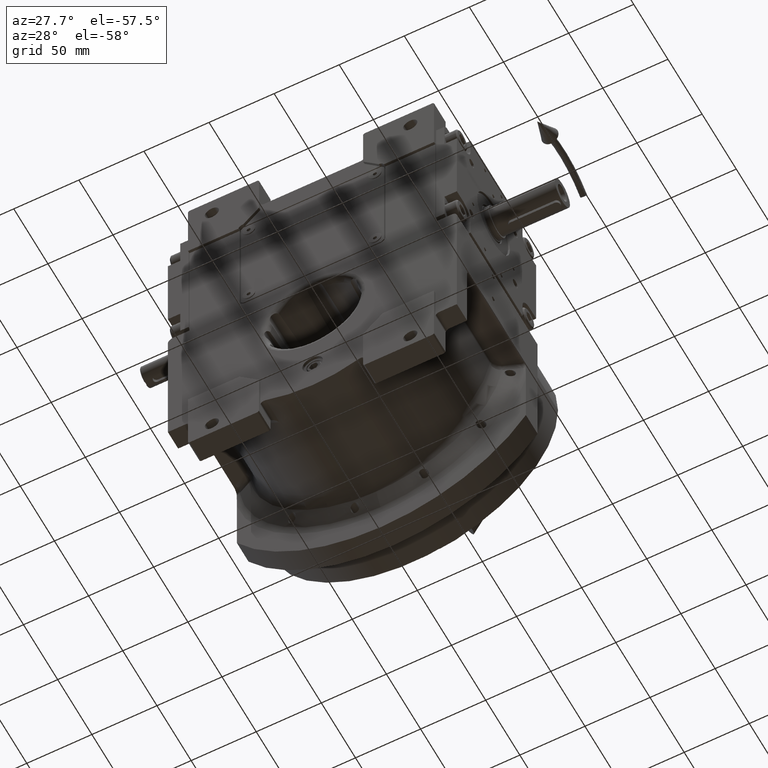
[diagram: clean part render]
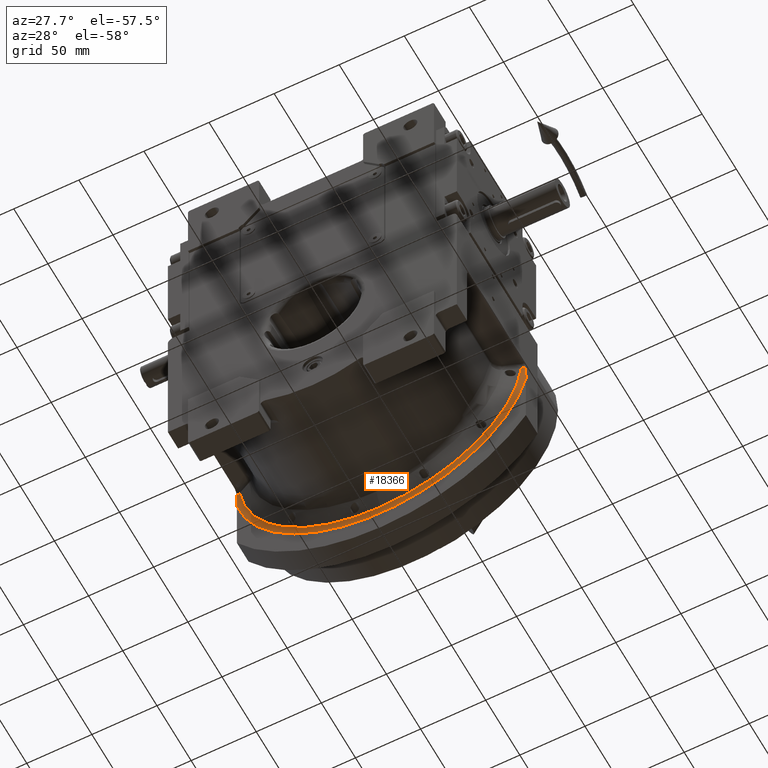
[diagram: same view with one face highlighted and labeled with its STEP entity id]
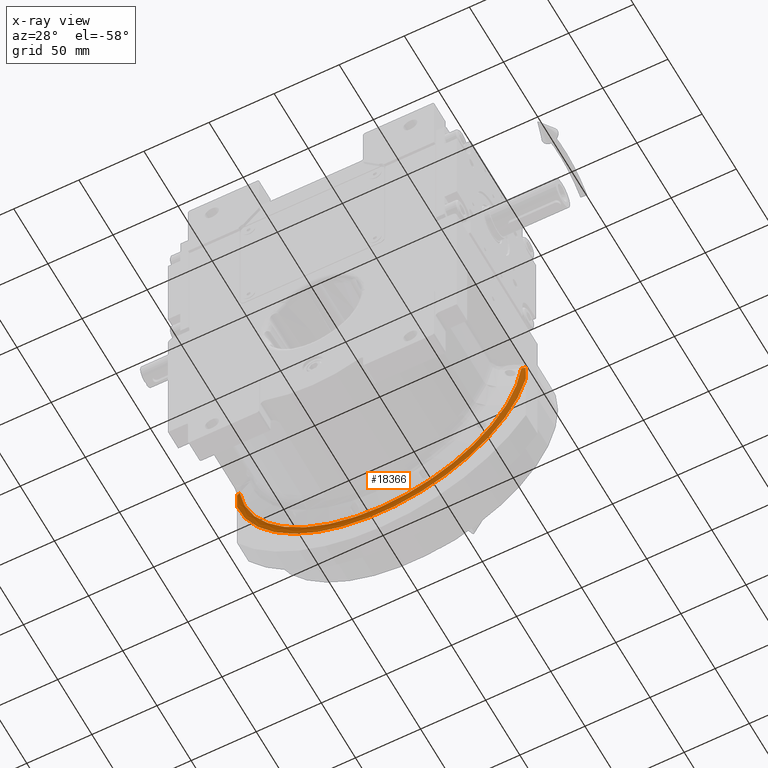
[diagram: x-ray of the same camera — body ghosted, the highlighted face saturated]
A machine part, auxiliary view. The second image highlights one B-rep face of the part: STEP entity #18366.
The next image is the same camera in x-ray: the body ghosted, the highlighted face saturated — about 0% of this face is hidden behind the body in this view.
In plain terms, the highlighted toroidal blend (fillet) surface has major radius 113.879 mm and minor (blend) radius 10 mm.
Its self-contained STEP definition (entity closure, byte-faithful):
#482 = ORIENTED_EDGE ( 'NONE', *, *, #14515, .F. ) ;
#736 = CARTESIAN_POINT ( 'NONE',  ( -108.2181486248951927, 46.16020982646139714, -11.98056577044130044 ) ) ;
#1132 = CARTESIAN_POINT ( 'NONE',  ( 109.9039732449431170, 46.93902478097685815, -11.84631214861205706 ) ) ;
#2219 = CARTESIAN_POINT ( 'NONE',  ( 110.9999999999999574, 47.37721023959501565, -17.15660303781627150 ) ) ;
#2521 = B_SPLINE_CURVE_WITH_KNOTS ( 'NONE', 3,
 ( #24595, #67567, #51083, #45922, #55563, #35895, #40416, #60718, #61737, #25622, #13607, #35223, #46600 ),
 .UNSPECIFIED., .F., .F.,
 ( 4, 1, 1, 2, 2, 1, 1, 1, 4 ),
 ( 0.000000000000000000, 0.4999999999999906741, 0.5624999999999891198, 0.5703124999999893419, 0.5781249999999896749, 0.5937499999999901190, 0.6249999999999905631, 0.7499999999999935607, 1.000000000000000000 ),
 .UNSPECIFIED. ) ;
#2628 = CARTESIAN_POINT ( 'NONE',  ( -110.9999998426041969, 47.24161804384319652, -11.75654023702319861 ) ) ;
#2826 = VERTEX_POINT ( 'NONE', #736 ) ;
#2895 = CARTESIAN_POINT ( 'NONE',  ( 111.0000000000000000, 47.50000000000000000, -25.44626115736659955 ) ) ;
#3238 = CARTESIAN_POINT ( 'NONE',  ( 110.9999998869266022, 47.24161831933449918, -11.75654022255562126 ) ) ;
#4793 = ORIENTED_EDGE ( 'NONE', *, *, #37462, .T. ) ;
#4863 = B_SPLINE_CURVE_WITH_KNOTS ( 'NONE', 3,
 ( #36558, #27280, #1132, #57571, #58261, #11126 ),
 .UNSPECIFIED., .F., .F.,
 ( 4, 2, 4 ),
 ( 0.000000000000000000, 0.5000000000000000000, 1.000000000000000000 ),
 .UNSPECIFIED. ) ;
#4967 = FACE_OUTER_BOUND ( 'NONE', #40000, .T. ) ;
#7204 =( BOUNDED_CURVE ( )  B_SPLINE_CURVE ( 3, ( #11959, #60440, #53923, #18809 ),
 .UNSPECIFIED., .F., .F. ) 
 B_SPLINE_CURVE_WITH_KNOTS ( ( 4, 4 ),
 ( 4.894359738531879778, 6.354897060524587360 ),
 .UNSPECIFIED. ) 
 CURVE ( )  GEOMETRIC_REPRESENTATION_ITEM ( )  RATIONAL_B_SPLINE_CURVE ( ( 1.000000000000000000, 0.8299968090623841555, 0.8299968090623841555, 1.000000000000000000 ) ) 
 REPRESENTATION_ITEM ( '' )  );
#7763 = CIRCLE ( 'NONE', #48369, 113.8793756871230158 ) ;
#8230 = VERTEX_POINT ( 'NONE', #67617 ) ;
#9006 =( BOUNDED_CURVE ( )  B_SPLINE_CURVE ( 3, ( #58162, #11704, #22360, #16190 ),
 .UNSPECIFIED., .F., .F. ) 
 B_SPLINE_CURVE_WITH_KNOTS ( ( 4, 4 ),
 ( 0.07171175334500150267, 1.532246419677093741 ),
 .UNSPECIFIED. ) 
 CURVE ( )  GEOMETRIC_REPRESENTATION_ITEM ( )  RATIONAL_B_SPLINE_CURVE ( ( 1.000000000000000000, 0.8299973995656204639, 0.8299973995656204639, 1.000000000000000000 ) ) 
 REPRESENTATION_ITEM ( '' )  );
#11126 = CARTESIAN_POINT ( 'NONE',  ( 108.2182055107325880, 46.16026080517839603, -11.98086067912928065 ) ) ;
#11704 = CARTESIAN_POINT ( 'NONE',  ( 58.33757220637139795, 46.16024934371661459, -108.8793713190323729 ) ) ;
#11959 = CARTESIAN_POINT ( 'NONE',  ( -108.2181486248951927, 46.16020982646139714, -11.98056577044130044 ) ) ;
#12516 = EDGE_CURVE ( 'NONE', #38783, #32000, #47442, .T. ) ;
#13458 = CARTESIAN_POINT ( 'NONE',  ( 111.0000000000000000, 47.50000000000000000, -25.44626115736659955 ) ) ;
#13607 = CARTESIAN_POINT ( 'NONE',  ( -111.0000000000000284, 47.30739276393136095, -14.28307552350015541 ) ) ;
#13645 = ORIENTED_EDGE ( 'NONE', *, *, #54221, .F. ) ;
#14238 = CARTESIAN_POINT ( 'NONE',  ( 111.0000000000000000, 47.38034144301978046, -17.28637658354777784 ) ) ;
#14515 = EDGE_CURVE ( 'NONE', #63971, #8230, #9006, .T. ) ;
#16190 = CARTESIAN_POINT ( 'NONE',  ( 108.2182055107325880, 46.16026080517839603, -11.98086067912928065 ) ) ;
#18366 = ADVANCED_FACE ( 'NONE', ( #4967 ), #23554, .F. ) ;
#18809 = CARTESIAN_POINT ( 'NONE',  ( -6.107335892911600708E-14, 46.16024936020976099, -108.8793717567185979 ) ) ;
#18924 = ORIENTED_EDGE ( 'NONE', *, *, #12516, .F. ) ;
#19105 = CARTESIAN_POINT ( 'NONE',  ( -108.9781506155099464, 46.56477920288156724, -11.92076974956339086 ) ) ;
#19383 = CARTESIAN_POINT ( 'NONE',  ( 110.9999999999999858, 47.37382107352491545, -17.01630155678829581 ) ) ;
#22360 = CARTESIAN_POINT ( 'NONE',  ( 101.7988371762501458, 46.16025378558333614, -69.96418493751507128 ) ) ;
#23528 = CARTESIAN_POINT ( 'NONE',  ( 110.9999999999999574, 47.38500262563848509, -17.48094355212767326 ) ) ;
#23554 = TOROIDAL_SURFACE ( 'NONE', #53227, 113.8793756871230016, 10.00000000000000000 ) ;
#24223 = CARTESIAN_POINT ( 'NONE',  ( 110.9999999999999716, 47.37947912676571605, -17.25058397870262894 ) ) ;
#24595 = CARTESIAN_POINT ( 'NONE',  ( -111.0000000000000000, 47.50000000000000000, -25.44626115736729588 ) ) ;
#25622 = CARTESIAN_POINT ( 'NONE',  ( -110.9999999999999716, 47.35640947859300098, -16.28572579493090444 ) ) ;
#27280 = CARTESIAN_POINT ( 'NONE',  ( 110.4235987460407671, 47.10989188117843440, -11.80426955000224964 ) ) ;
#29088 = CARTESIAN_POINT ( 'NONE',  ( -108.2181486248951927, 46.16020982646139714, -11.98056577044130044 ) ) ;
#32000 = VERTEX_POINT ( 'NONE', #13458 ) ;
#34180 = CARTESIAN_POINT ( 'NONE',  ( 110.9999999999999289, 47.46019542777067812, -20.85051949887152745 ) ) ;
#35223 = CARTESIAN_POINT ( 'NONE',  ( -111.0000000000000284, 47.26671036820440008, -12.69711666045169274 ) ) ;
#35895 = CARTESIAN_POINT ( 'NONE',  ( -111.0000000000000142, 47.38804427955523835, -17.60168279826294579 ) ) ;
#36506 = CARTESIAN_POINT ( 'NONE',  ( -6.107335892911600708E-14, 46.16024936020976099, -108.8793717567185979 ) ) ;
#36558 = CARTESIAN_POINT ( 'NONE',  ( 110.9999998869266022, 47.24161831933449918, -11.75654022255562126 ) ) ;
#37462 = EDGE_CURVE ( 'NONE', #51100, #32000, #7763, .T. ) ;
#38783 = VERTEX_POINT ( 'NONE', #65721 ) ;
#39147 = EDGE_CURVE ( 'NONE', #38783, #8230, #4863, .T. ) ;
#39354 = CARTESIAN_POINT ( 'NONE',  ( 110.9999999999999432, 47.30109702303251140, -14.03657177442504000 ) ) ;
#40000 = EDGE_LOOP ( 'NONE', ( #13645, #43476, #47714, #4793, #18924, #48646, #482 ) ) ;
#40371 = CARTESIAN_POINT ( 'NONE',  ( 110.9999999999999858, 47.35262548411426309, -16.14045418600772308 ) ) ;
#40416 = CARTESIAN_POINT ( 'NONE',  ( -111.0000000000000142, 47.38697793714037942, -17.55712914402924696 ) ) ;
#43476 = ORIENTED_EDGE ( 'NONE', *, *, #56133, .T. ) ;
#45346 = CARTESIAN_POINT ( 'NONE',  ( -111.0000000000000000, 47.50000000000000000, -25.44626115736729588 ) ) ;
#45528 = CARTESIAN_POINT ( 'NONE',  ( 110.9999999999999574, 47.26250817921272329, -12.53135113091263264 ) ) ;
#45922 = CARTESIAN_POINT ( 'NONE',  ( -111.0000000000000142, 47.39775283363938030, -18.01025571059393826 ) ) ;
#46158 = CARTESIAN_POINT ( 'NONE',  ( -9.947598300641398816E-14, 47.50000000000000000, -5.684341886080798963E-14 ) ) ;
#46600 = CARTESIAN_POINT ( 'NONE',  ( -110.9999998426041969, 47.24161804384319652, -11.75654023702319861 ) ) ;
#47362 = VERTEX_POINT ( 'NONE', #51501 ) ;
#47442 = B_SPLINE_CURVE_WITH_KNOTS ( 'NONE', 3,
 ( #3238, #45528, #39354, #40371, #19383, #2219, #24223, #14238, #23528, #50040, #34180, #60342, #2895 ),
 .UNSPECIFIED., .F., .F.,
 ( 4, 1, 1, 1, 2, 2, 1, 1, 4 ),
 ( 0.000000000000000000, 0.2499999999999993339, 0.3749999999999991673, 0.3906249999999991673, 0.3984374999999988898, 0.4062499999999986122, 0.4374999999999987788, 0.4999999999999991118, 1.000000000000000000 ),
 .UNSPECIFIED. ) ;
#47714 = ORIENTED_EDGE ( 'NONE', *, *, #49116, .F. ) ;
#48369 = AXIS2_PLACEMENT_3D ( 'NONE', #46158, #67137, #55790 ) ;
#48646 = ORIENTED_EDGE ( 'NONE', *, *, #39147, .T. ) ;
#49116 = EDGE_CURVE ( 'NONE', #51100, #47362, #2521, .T. ) ;
#49436 = CARTESIAN_POINT ( 'NONE',  ( -108.5720257659131534, 46.36153724422366906, -11.95314572303506395 ) ) ;
#49780 = CARTESIAN_POINT ( 'NONE',  ( -110.4234585868003222, 47.10985980794839634, -11.80427979343789069 ) ) ;
#50040 = CARTESIAN_POINT ( 'NONE',  ( 110.9999999999999147, 47.39592956473512686, -17.94582316151957713 ) ) ;
#51083 = CARTESIAN_POINT ( 'NONE',  ( -110.9999999999999858, 47.45869610671962846, -20.70783326501533494 ) ) ;
#51086 = DIRECTION ( 'NONE',  ( -0.9987228073795436645, 0.000000000000000000, -0.05052478619373559215 ) ) ;
#51100 = VERTEX_POINT ( 'NONE', #45346 ) ;
#51501 = CARTESIAN_POINT ( 'NONE',  ( -110.9999998426041969, 47.24161804384319652, -11.75654023702319861 ) ) ;
#52769 = B_SPLINE_CURVE_WITH_KNOTS ( 'NONE', 3,
 ( #29088, #49436, #19105, #65579, #49780, #2628 ),
 .UNSPECIFIED., .F., .F.,
 ( 4, 2, 4 ),
 ( 0.000000000000000000, 0.5000000000000000000, 1.000000000000000000 ),
 .UNSPECIFIED. ) ;
#53227 = AXIS2_PLACEMENT_3D ( 'NONE', #67916, #62761, #51086 ) ;
#53923 = CARTESIAN_POINT ( 'NONE',  ( -58.33770022237654018, 46.16024937670292871, -108.8793721944054340 ) ) ;
#54221 = EDGE_CURVE ( 'NONE', #2826, #63971, #7204, .T. ) ;
#55563 = CARTESIAN_POINT ( 'NONE',  ( -111.0000000000000284, 47.38981798226070907, -17.67600262140464196 ) ) ;
#55790 = DIRECTION ( 'NONE',  ( -0.9747155648707268583, 0.000000000000000000, -0.2234492506112734644 ) ) ;
#56133 = EDGE_CURVE ( 'NONE', #2826, #47362, #52769, .T. ) ;
#57571 = CARTESIAN_POINT ( 'NONE',  ( 108.9783490142804538, 46.56487083118202719, -11.92075401756932429 ) ) ;
#58162 = CARTESIAN_POINT ( 'NONE',  ( -6.107335892911600708E-14, 46.16024936020976099, -108.8793717567185979 ) ) ;
#58261 = CARTESIAN_POINT ( 'NONE',  ( 108.5721546957471020, 46.36161021549431638, -11.95313475060374131 ) ) ;
#60342 = CARTESIAN_POINT ( 'NONE',  ( 110.9999999999999574, 47.49300976463167956, -23.37757664004382363 ) ) ;
#60440 = CARTESIAN_POINT ( 'NONE',  ( -101.7990064294248214, 46.16025384316066038, -69.96404336023731219 ) ) ;
#60718 = CARTESIAN_POINT ( 'NONE',  ( -111.0000000000000568, 47.38398366112607363, -17.43201616111707608 ) ) ;
#61737 = CARTESIAN_POINT ( 'NONE',  ( -111.0000000000000000, 47.37801887890174868, -17.18315811918595060 ) ) ;
#62761 = DIRECTION ( 'NONE',  ( 0.000000000000000000, 1.000000000000000000, 0.000000000000000000 ) ) ;
#63971 = VERTEX_POINT ( 'NONE', #36506 ) ;
#65579 = CARTESIAN_POINT ( 'NONE',  ( -109.9037689433001930, 46.93895356715016476, -11.84632748395139146 ) ) ;
#65721 = CARTESIAN_POINT ( 'NONE',  ( 110.9999998869266022, 47.24161831933449918, -11.75654022255562126 ) ) ;
#67137 = DIRECTION ( 'NONE',  ( 0.000000000000000000, -1.000000000000000000, 0.000000000000000000 ) ) ;
#67567 = CARTESIAN_POINT ( 'NONE',  ( -110.9999999999999858, 47.49184152199143227, -23.26125549203704068 ) ) ;
#67617 = CARTESIAN_POINT ( 'NONE',  ( 108.2182055107325880, 46.16026080517839603, -11.98086067912928065 ) ) ;
#67916 = CARTESIAN_POINT ( 'NONE',  ( -9.237055564881299892E-14, 37.50000000000000000, -8.171241461241149613E-14 ) ) ;